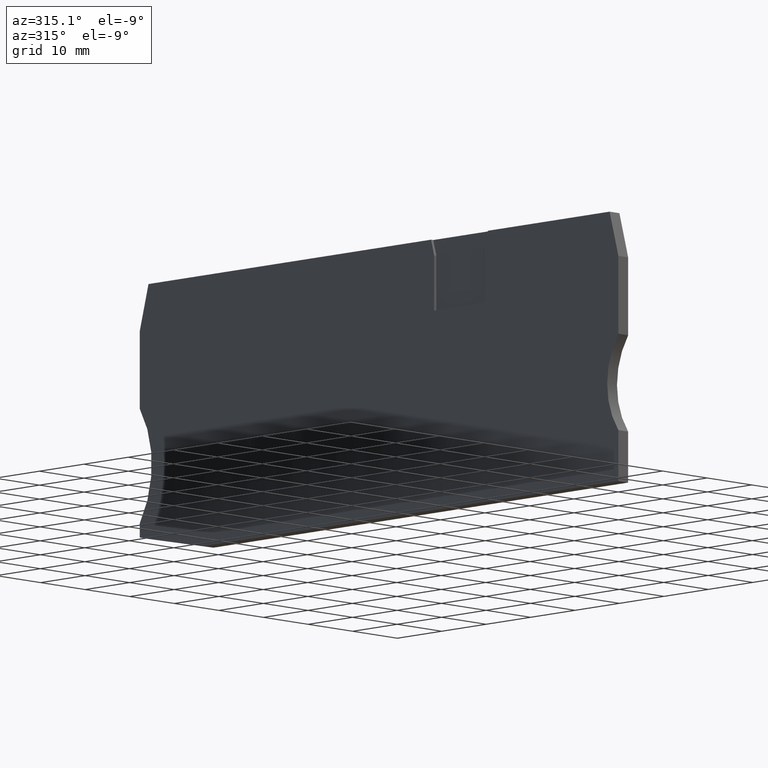
[diagram: clean part render]
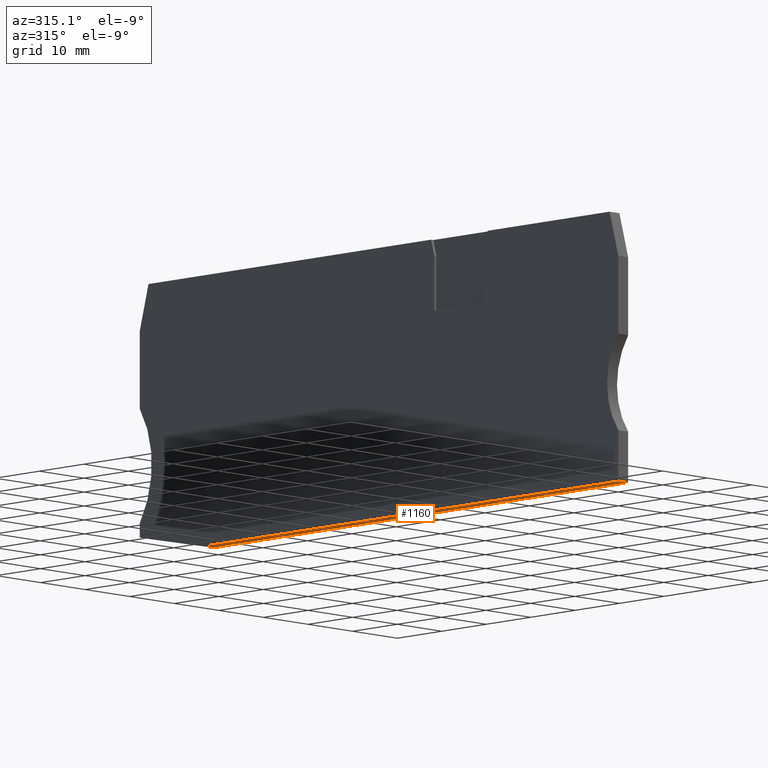
[diagram: same view with one face highlighted and labeled with its STEP entity id]
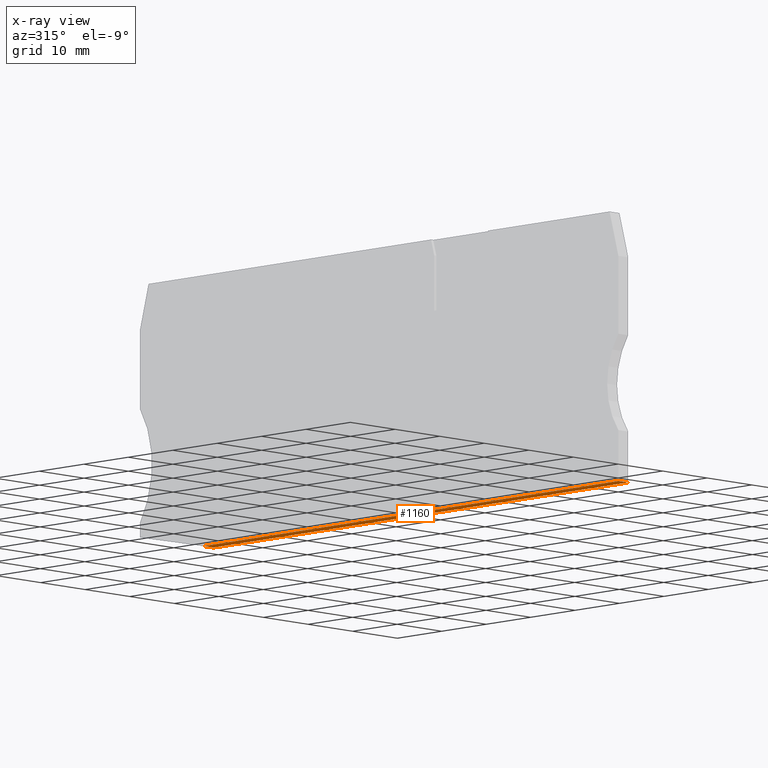
[diagram: x-ray of the same camera — body ghosted, the highlighted face saturated]
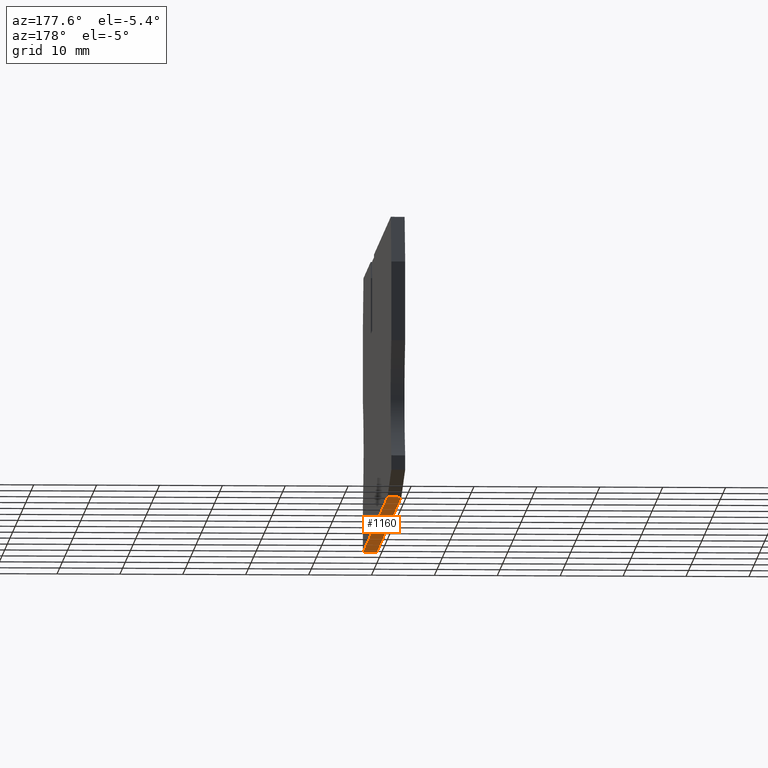
[diagram: same view with one face highlighted and labeled with its STEP entity id]
A machine part, auxiliary view. The second image highlights one B-rep face of the part: STEP entity #1160.
The next image is the same camera in x-ray: the body ghosted, the highlighted face saturated — about 0% of this face is hidden behind the body in this view.
A second angle (auxiliary view) of the same face is appended — the face is thin or edge-on in the first view.
In plain terms, the highlighted planar face has unit normal (0, 0, -1).
Its self-contained STEP definition (entity closure, byte-faithful):
#100=CARTESIAN_POINT('',(-0.800000000000004,0.199999999999154,
11.9999999999989));
#110=VERTEX_POINT('',#100);
#210=CARTESIAN_POINT('',(-0.800000000000003,0.199999999999154,
12.0142711501956));
#220=VERTEX_POINT('',#210);
#250=CARTESIAN_POINT('',(-0.800000000000004,0.199999999999154,12.));
#260=DIRECTION('',(0.,0.,1.));
#270=VECTOR('',#260,1.);
#280=LINE('',#250,#270);
#290=EDGE_CURVE('',#110,#220,#280,.T.);
#410=CARTESIAN_POINT('',(-13.050000000006,0.199999999999154,12.));
#420=DIRECTION('',(-0.,-1.,-0.));
#430=DIRECTION('',(-1.,0.,0.));
#440=AXIS2_PLACEMENT_3D('',#410,#420,#430);
#450=PLANE('',#440);
#460=CARTESIAN_POINT('',(-6.9708756914192,0.199999999999154,
11.999999999999));
#470=DIRECTION('',(1.,0.,-2.46209646432131E-14));
#480=VECTOR('',#470,1.);
#490=LINE('',#460,#480);
#500=CARTESIAN_POINT('',(-42.550000000006,0.199999999999154,
11.9999999999999));
#510=VERTEX_POINT('',#500);
#520=EDGE_CURVE('',#510,#110,#490,.T.);
#530=ORIENTED_EDGE('',*,*,#520,.F.);
#540=ORIENTED_EDGE('',*,*,#290,.F.);
#550=CARTESIAN_POINT('',(-0.249999999999947,0.199999999999154,
20.0179106048135));
#560=DIRECTION('',(0.,1.,0.));
#570=DIRECTION('',(1.,0.,0.));
#580=AXIS2_PLACEMENT_3D('',#550,#560,#570);
#590=CIRCLE('',#580,8.02251485006517);
#600=CARTESIAN_POINT('',(-0.52176102136936,0.200000000000884,
11.9999999999989));
#610=VERTEX_POINT('',#600);
#620=EDGE_CURVE('',#610,#220,#590,.T.);
#630=ORIENTED_EDGE('',*,*,#620,.T.);
#640=CARTESIAN_POINT('',(-6.9708756914192,0.199999999999154,
11.999999999999));
#650=DIRECTION('',(1.,7.41529250907751E-29,-2.46209646432131E-14));
#660=VECTOR('',#650,1.);
#670=LINE('',#640,#660);
#680=CARTESIAN_POINT('',(0.021761021369648,0.199999999999154,
11.9999999999989));
#690=VERTEX_POINT('',#680);
#700=EDGE_CURVE('',#610,#690,#670,.T.);
#710=ORIENTED_EDGE('',*,*,#700,.F.);
#720=CARTESIAN_POINT('',(0.299999999999997,0.199999999999154,
12.0142711501956));
#730=VERTEX_POINT('',#720);
#740=EDGE_CURVE('',#730,#690,#590,.T.);
#750=ORIENTED_EDGE('',*,*,#740,.T.);
#760=CARTESIAN_POINT('',(0.299999999999997,0.199999999999154,12.));
#770=DIRECTION('',(0.,0.,-1.));
#780=VECTOR('',#770,1.);
#790=LINE('',#760,#780);
#800=CARTESIAN_POINT('',(0.299999999999997,0.199999999999154,
11.9999999999989));
#810=VERTEX_POINT('',#800);
#820=EDGE_CURVE('',#730,#810,#790,.T.);
#830=ORIENTED_EDGE('',*,*,#820,.F.);
#840=CARTESIAN_POINT('',(-6.9708756914192,0.199999999999154,
11.999999999999));
#850=DIRECTION('',(1.,7.41529250907751E-29,-2.46209646432131E-14));
#860=VECTOR('',#850,1.);
#870=LINE('',#840,#860);
#880=CARTESIAN_POINT('',(50.7607405559825,0.199999999999154,
11.9999999999976));
#890=VERTEX_POINT('',#880);
#900=EDGE_CURVE('',#810,#890,#870,.T.);
#910=ORIENTED_EDGE('',*,*,#900,.F.);
#920=CARTESIAN_POINT('',(50.7607405559824,0.199999999999157,12.));
#930=DIRECTION('',(3.91594154607846E-14,0.,1.));
#940=VECTOR('',#930,1.);
#950=LINE('',#920,#940);
#960=CARTESIAN_POINT('',(50.7607405559826,0.199999999999154,9.8));
#970=VERTEX_POINT('',#960);
#980=EDGE_CURVE('',#970,#890,#950,.T.);
#990=ORIENTED_EDGE('',*,*,#980,.T.);
#1000=CARTESIAN_POINT('',(-6.9708756914192,0.199999999999154,9.8));
#1010=DIRECTION('',(-1.,0.,0.));
#1020=VECTOR('',#1010,1.);
#1030=LINE('',#1000,#1020);
#1040=CARTESIAN_POINT('',(-42.550000000006,0.199999999999154,9.8));
#1050=VERTEX_POINT('',#1040);
#1060=EDGE_CURVE('',#970,#1050,#1030,.T.);
#1070=ORIENTED_EDGE('',*,*,#1060,.F.);
#1080=CARTESIAN_POINT('',(-42.550000000006,0.199999999999154,12.));
#1090=DIRECTION('',(0.,0.,1.));
#1100=VECTOR('',#1090,1.);
#1110=LINE('',#1080,#1100);
#1120=EDGE_CURVE('',#1050,#510,#1110,.T.);
#1130=ORIENTED_EDGE('',*,*,#1120,.F.);
#1140=EDGE_LOOP('',(#1130,#1070,#990,#910,#830,#750,#710,#630,#540,#530)
);
#1150=FACE_OUTER_BOUND('',#1140,.T.);
#1160=ADVANCED_FACE('',(#1150),#450,.T.);